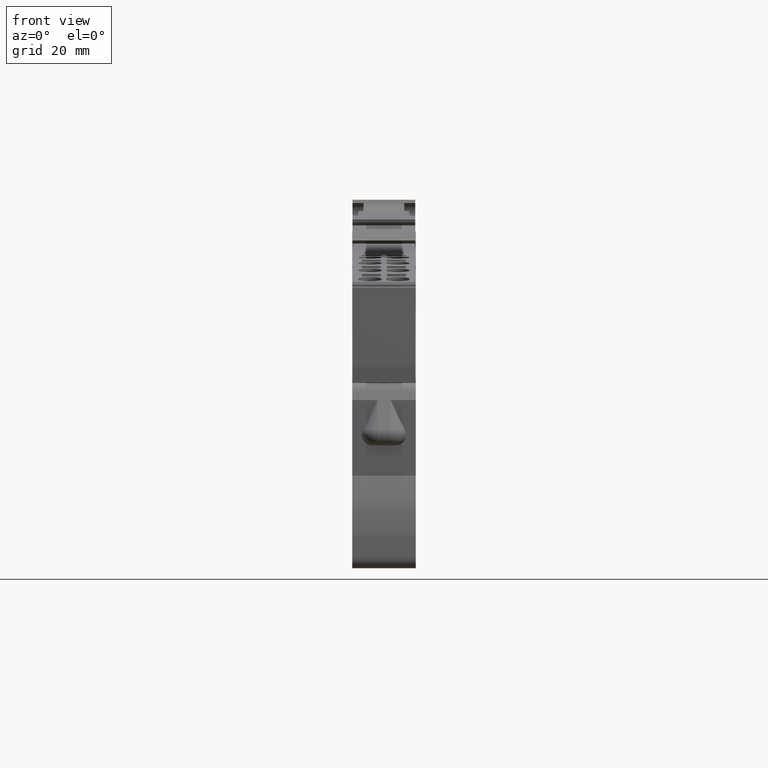
[diagram: clean part render]
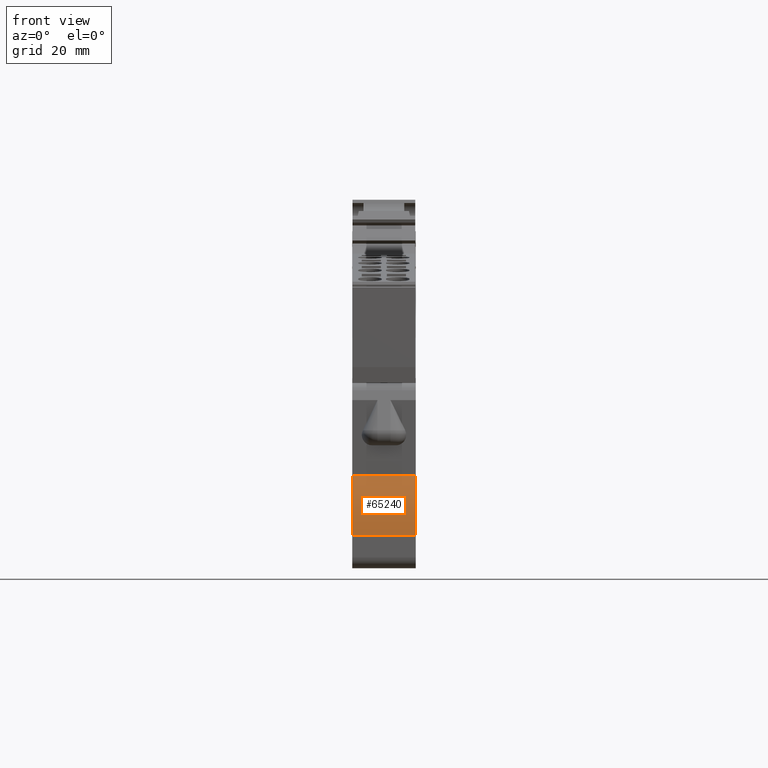
[diagram: same view with one face highlighted and labeled with its STEP entity id]
A machine part, front view. The second image highlights one B-rep face of the part: STEP entity #65240.
In plain terms, the highlighted cylindrical surface (partial cylindrical patch) has radius 30 mm, axis along (1, 0, 0).
Its self-contained STEP definition (entity closure, byte-faithful):
#4270=CARTESIAN_POINT('',(176.802689507967,-56.6770591260145,36.45));
#4280=VERTEX_POINT('',#4270);
#4310=CARTESIAN_POINT('',(206.774136155416,-57.9856407469757,36.45));
#4320=DIRECTION('',(0.,1.19110369467609E-44,1.));
#4330=DIRECTION('',(1.,0.,0.));
#4340=AXIS2_PLACEMENT_3D('',#4310,#4320,#4330);
#4350=CIRCLE('',#4340,29.9999999999933);
#4360=CARTESIAN_POINT('',(179.617847465003,-45.2366806104567,36.45));
#4370=VERTEX_POINT('',#4360);
#4380=EDGE_CURVE('',#4370,#4280,#4350,.T.);
#9540=CARTESIAN_POINT('',(179.617847465003,-45.2366806104566,24.3));
#9550=VERTEX_POINT('',#9540);
#9580=CARTESIAN_POINT('',(206.774136155416,-57.9856407469757,24.3));
#9590=DIRECTION('',(0.,1.19110369467609E-44,1.));
#9600=DIRECTION('',(1.,0.,0.));
#9610=AXIS2_PLACEMENT_3D('',#9580,#9590,#9600);
#9620=CIRCLE('',#9610,29.9999999999933);
#9630=CARTESIAN_POINT('',(176.802689507967,-56.6770591260145,24.3));
#9640=VERTEX_POINT('',#9630);
#9650=EDGE_CURVE('',#9550,#9640,#9620,.T.);
#64920=CARTESIAN_POINT('',(179.617847465003,-45.2366806104567,24.3));
#64930=DIRECTION('',(0.,1.19110369467609E-44,1.));
#64940=VECTOR('',#64930,1.);
#64950=LINE('',#64920,#64940);
#64960=EDGE_CURVE('',#9550,#4370,#64950,.T.);
#65080=CARTESIAN_POINT('',(206.774136155416,-57.9856407469757,24.3));
#65090=DIRECTION('',(0.,1.19110369467609E-44,1.));
#65100=DIRECTION('',(1.,0.,0.));
#65110=AXIS2_PLACEMENT_3D('',#65080,#65090,#65100);
#65120=CYLINDRICAL_SURFACE('',#65110,29.9999999999933);
#65130=ORIENTED_EDGE('',*,*,#9650,.T.);
#65140=ORIENTED_EDGE('',*,*,#64960,.F.);
#65150=ORIENTED_EDGE('',*,*,#4380,.F.);
#65160=CARTESIAN_POINT('',(176.802689507967,-56.6770591260145,24.3));
#65170=DIRECTION('',(0.,1.19110369467609E-44,1.));
#65180=VECTOR('',#65170,1.);
#65190=LINE('',#65160,#65180);
#65200=EDGE_CURVE('',#9640,#4280,#65190,.T.);
#65210=ORIENTED_EDGE('',*,*,#65200,.T.);
#65220=EDGE_LOOP('',(#65210,#65150,#65140,#65130));
#65230=FACE_OUTER_BOUND('',#65220,.T.);
#65240=ADVANCED_FACE('',(#65230),#65120,.T.);